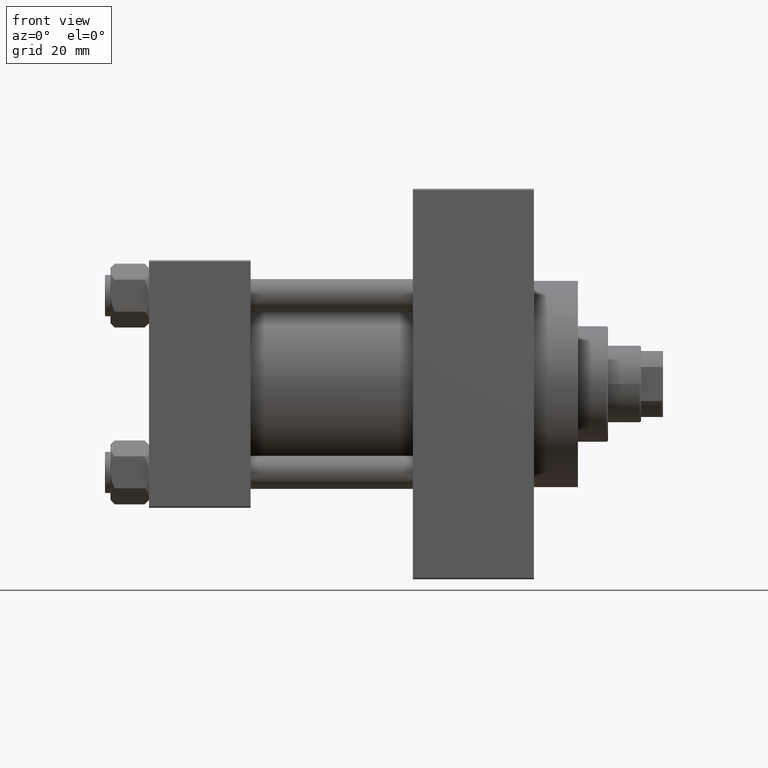
[diagram: clean part render]
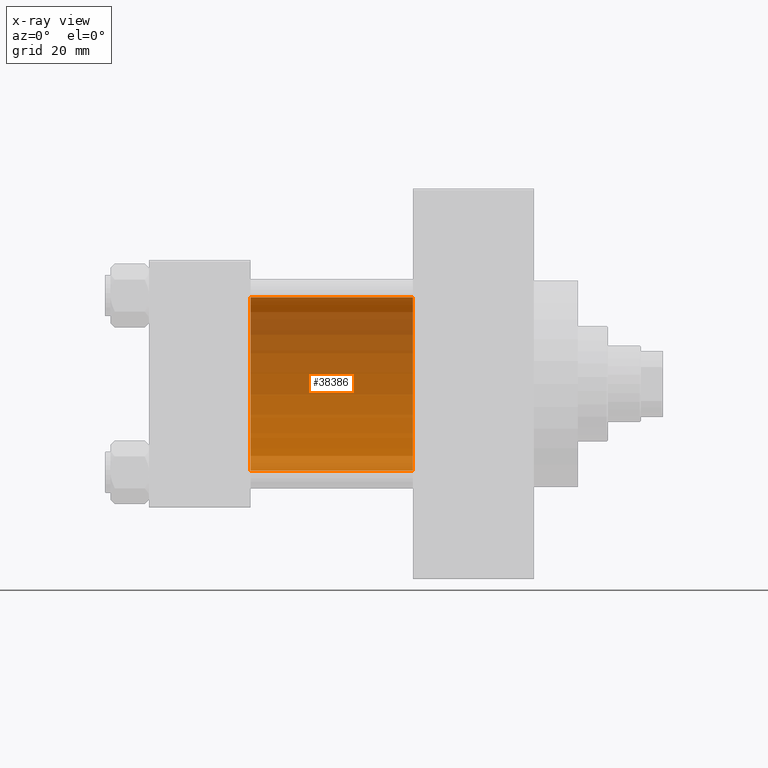
[diagram: x-ray — body ghosted, one internal face saturated and labeled with its STEP entity id]
A machine part, front view, then the same camera in x-ray: the body is ghosted and one INTERNAL B-rep face — a face not visible from any outside direction — is saturated and labeled: STEP entity #38386.
In plain terms, the highlighted cylindrical surface (partial cylindrical patch) has radius 31.5 mm, axis along (-1, -0, -0).
Its self-contained STEP definition (entity closure, byte-faithful):
#168 = VERTEX_POINT ( 'NONE', #41308 ) ;
#765 = CARTESIAN_POINT ( 'NONE',  ( 96.00000000000000000, -2.602085213965210642E-15, 0.000000000000000000 ) ) ;
#1063 = DIRECTION ( 'NONE',  ( -1.000000000000000000, -0.000000000000000000, -0.000000000000000000 ) ) ;
#1445 = VERTEX_POINT ( 'NONE', #14281 ) ;
#2056 = ORIENTED_EDGE ( 'NONE', *, *, #33878, .F. ) ;
#7268 = CARTESIAN_POINT ( 'NONE',  ( 37.00000000000000000, -2.602085213965210642E-15, 31.50000000000000000 ) ) ;
#10004 = CIRCLE ( 'NONE', #28946, 31.50000000000000000 ) ;
#13052 = ORIENTED_EDGE ( 'NONE', *, *, #16782, .F. ) ;
#13377 = CARTESIAN_POINT ( 'NONE',  ( 96.00000000000000000, -2.602085213965210642E-15, 0.000000000000000000 ) ) ;
#14281 = CARTESIAN_POINT ( 'NONE',  ( 96.00000000000000000, -2.602085213965210642E-15, 31.50000000000000000 ) ) ;
#14955 = DIRECTION ( 'NONE',  ( 0.000000000000000000, 0.000000000000000000, -1.000000000000000000 ) ) ;
#15064 = DIRECTION ( 'NONE',  ( -1.000000000000000000, -0.000000000000000000, -0.000000000000000000 ) ) ;
#16589 = DIRECTION ( 'NONE',  ( -1.000000000000000000, -0.000000000000000000, -0.000000000000000000 ) ) ;
#16782 = EDGE_CURVE ( 'NONE', #31267, #33416, #10004, .T. ) ;
#17082 = DIRECTION ( 'NONE',  ( 1.000000000000000000, 0.000000000000000000, 0.000000000000000000 ) ) ;
#17825 = VECTOR ( 'NONE', #1063, 1000.000000000000000 ) ;
#19159 = LINE ( 'NONE', #45886, #17825 ) ;
#22472 = CARTESIAN_POINT ( 'NONE',  ( 96.00000000000000000, 1.255552203348951850E-15, -31.50000000000000000 ) ) ;
#23087 = AXIS2_PLACEMENT_3D ( 'NONE', #765, #16589, #30706 ) ;
#24817 = ORIENTED_EDGE ( 'NONE', *, *, #41015, .T. ) ;
#25589 = DIRECTION ( 'NONE',  ( 1.000000000000000000, 0.000000000000000000, 0.000000000000000000 ) ) ;
#27723 = CYLINDRICAL_SURFACE ( 'NONE', #23087, 31.50000000000000000 ) ;
#28946 = AXIS2_PLACEMENT_3D ( 'NONE', #29314, #25589, #14955 ) ;
#29314 = CARTESIAN_POINT ( 'NONE',  ( 37.00000000000000000, -2.602085213965210642E-15, 0.000000000000000000 ) ) ;
#30146 = LINE ( 'NONE', #22472, #33364 ) ;
#30706 = DIRECTION ( 'NONE',  ( 0.000000000000000000, 0.000000000000000000, 1.000000000000000000 ) ) ;
#31267 = VERTEX_POINT ( 'NONE', #32390 ) ;
#31430 = FACE_OUTER_BOUND ( 'NONE', #39168, .T. ) ;
#31684 = DIRECTION ( 'NONE',  ( 0.000000000000000000, 0.000000000000000000, -1.000000000000000000 ) ) ;
#32390 = CARTESIAN_POINT ( 'NONE',  ( 37.00000000000000000, 1.255552203348951850E-15, -31.50000000000000000 ) ) ;
#33364 = VECTOR ( 'NONE', #15064, 1000.000000000000000 ) ;
#33416 = VERTEX_POINT ( 'NONE', #7268 ) ;
#33878 = EDGE_CURVE ( 'NONE', #168, #31267, #30146, .T. ) ;
#34085 = ORIENTED_EDGE ( 'NONE', *, *, #45776, .T. ) ;
#38386 = ADVANCED_FACE ( 'NONE', ( #31430 ), #27723, .F. ) ;
#39168 = EDGE_LOOP ( 'NONE', ( #2056, #24817, #34085, #13052 ) ) ;
#41015 = EDGE_CURVE ( 'NONE', #168, #1445, #42972, .T. ) ;
#41308 = CARTESIAN_POINT ( 'NONE',  ( 96.00000000000000000, 1.255552203348951850E-15, -31.50000000000000000 ) ) ;
#41432 = AXIS2_PLACEMENT_3D ( 'NONE', #13377, #17082, #31684 ) ;
#42972 = CIRCLE ( 'NONE', #41432, 31.50000000000000000 ) ;
#45776 = EDGE_CURVE ( 'NONE', #1445, #33416, #19159, .T. ) ;
#45886 = CARTESIAN_POINT ( 'NONE',  ( 96.00000000000000000, -2.602085213965210642E-15, 31.50000000000000000 ) ) ;